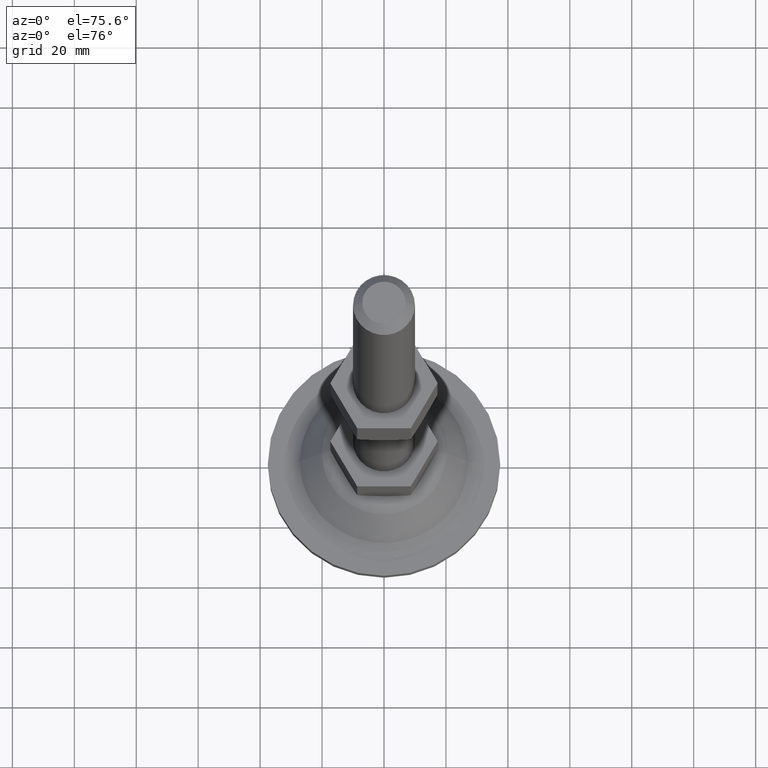
[diagram: clean part render]
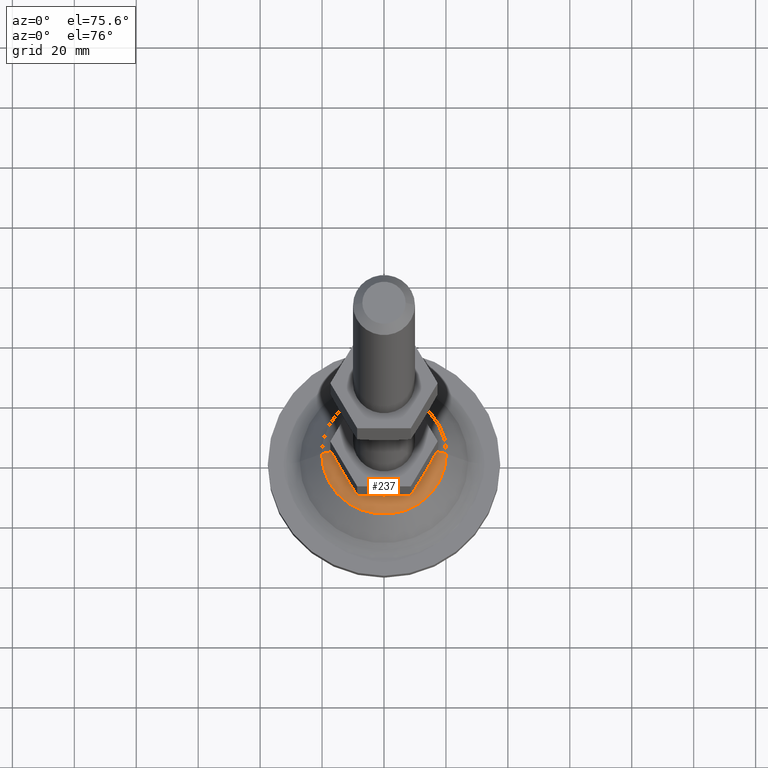
[diagram: same view with one face highlighted and labeled with its STEP entity id]
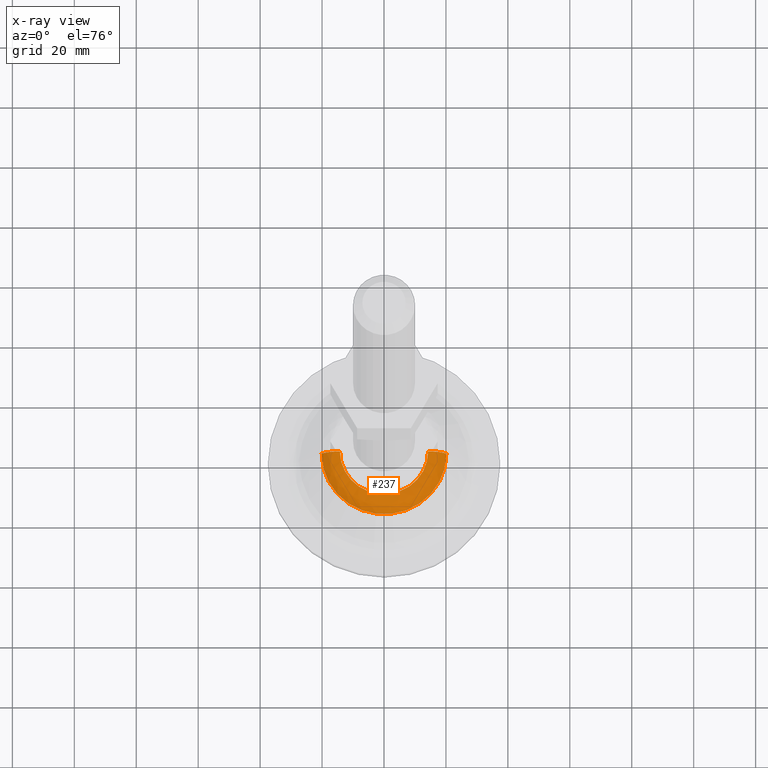
[diagram: x-ray of the same camera — body ghosted, the highlighted face saturated]
A machine part, auxiliary view. The second image highlights one B-rep face of the part: STEP entity #237.
The next image is the same camera in x-ray: the body ghosted, the highlighted face saturated — about 0% of this face is hidden behind the body in this view.
In plain terms, the highlighted face is a freeform B-spline surface patch.
Its self-contained STEP definition (entity closure, byte-faithful):
#237=ADVANCED_FACE('',(#1132),#1131,.T.);
#1131=( BOUNDED_SURFACE() B_SPLINE_SURFACE( 2,2,((#1795,#1796,#1797),(#1798,#1799,#1800),(#1801,#1802,#1803),(#1804,#1805,#1806),(#1807,#1808,#1809)), .UNSPECIFIED.,.F.,.F.,.F.) B_SPLINE_SURFACE_WITH_KNOTS((3,2,3),(3,3),(0.00000000000E+00,5.00000000000E-01,1.00000000000E+00),(0.00000000000E+00,1.00000000000E+00), .UNSPECIFIED. ) GEOMETRIC_REPRESENTATION_ITEM() RATIONAL_B_SPLINE_SURFACE(((1.00000000000E+00,5.73576436349E-01,1.00000000000E+00),(7.07106781187E-01,4.05579787671E-01,7.07106781187E-01),(1.00000000000E+00,5.73576436349E-01,1.00000000000E+00),(7.07106781187E-01,4.05579787671E-01,7.07106781187E-01),(1.00000000000E+00,5.73576436349E-01,1.00000000000E+00))) REPRESENTATION_ITEM('') SURFACE() );
#1132=FACE_OUTER_BOUND('',#1810,.T.);
#1795=CARTESIAN_POINT('',(8.35210528111E+00,-1.02280411951E-15,-1.61119920888E+01));
#1796=CARTESIAN_POINT('',(1.42500000000E+01,-1.74506405420E-15,-7.68892550201E+00));
#1797=CARTESIAN_POINT('',(2.01478947189E+01,-2.46732398889E-15,-1.61119920888E+01));
#1798=CARTESIAN_POINT('',(8.35210528111E+00,-8.35210528115E+00,-1.61119920888E+01));
#1799=CARTESIAN_POINT('',(1.42500000000E+01,-1.42500000000E+01,-7.68892550201E+00));
#1800=CARTESIAN_POINT('',(2.01478947189E+01,-2.01478947189E+01,-1.61119920888E+01));
#1801=CARTESIAN_POINT('',(-3.52153979475E-11,-8.35210528115E+00,-1.61119920888E+01));
#1802=CARTESIAN_POINT('',(-3.52157590655E-11,-1.42500000000E+01,-7.68892550201E+00));
#1803=CARTESIAN_POINT('',(-3.52161201836E-11,-2.01478947189E+01,-1.61119920888E+01));
#1804=CARTESIAN_POINT('',(-8.35210528118E+00,-8.35210528115E+00,-1.61119920888E+01));
#1805=CARTESIAN_POINT('',(-1.42500000001E+01,-1.42500000000E+01,-7.68892550201E+00));
#1806=CARTESIAN_POINT('',(-2.01478947190E+01,-2.01478947189E+01,-1.61119920888E+01));
#1807=CARTESIAN_POINT('',(-8.35210528118E+00,-3.37803612330E-20,-1.61119920888E+01));
#1808=CARTESIAN_POINT('',(-1.42500000001E+01,-5.76345880915E-20,-7.68892550201E+00));
#1809=CARTESIAN_POINT('',(-2.01478947190E+01,-8.14888149490E-20,-1.61119920888E+01));
#1810=EDGE_LOOP('',(#2235,#2236,#2237,#2238));
#2235=ORIENTED_EDGE('',*,*,#2446,.F.);
#2236=ORIENTED_EDGE('',*,*,#2449,.F.);
#2237=ORIENTED_EDGE('',*,*,#2423,.T.);
#2238=ORIENTED_EDGE('',*,*,#2450,.T.);
#2423=EDGE_CURVE('',#3651,#3652,#3653,.T.);
#2446=EDGE_CURVE('',#3793,#3800,#3801,.T.);
#2449=EDGE_CURVE('',#3651,#3793,#3819,.T.);
#2450=EDGE_CURVE('',#3652,#3800,#3825,.T.);
#3651=VERTEX_POINT('',#4693);
#3652=VERTEX_POINT('',#4694);
#3653=CIRCLE('',#4698,1.42500000001E+01);
#3793=VERTEX_POINT('',#4773);
#3800=VERTEX_POINT('',#4776);
#3801=CIRCLE('',#4780,2.01478947189E+01);
#3819=(BOUNDED_CURVE() B_SPLINE_CURVE(2,(#4787,#4788,#4789),.UNSPECIFIED.,.F.,.F.) B_SPLINE_CURVE_WITH_KNOTS((3,3),(5.00000000000E-01,1.00000000000E+00),.UNSPECIFIED.) CURVE() GEOMETRIC_REPRESENTATION_ITEM() RATIONAL_B_SPLINE_CURVE((7.86788218174E-01,7.86788218174E-01,1.00000000000E+00)) REPRESENTATION_ITEM('') );
#3825=(BOUNDED_CURVE() B_SPLINE_CURVE(2,(#4790,#4791,#4792),.UNSPECIFIED.,.F.,.F.) B_SPLINE_CURVE_WITH_KNOTS((3,3),(4.99999953827E-01,1.00000000000E+00),.UNSPECIFIED.) CURVE() GEOMETRIC_REPRESENTATION_ITEM() RATIONAL_B_SPLINE_CURVE((5.90091163631E-01,5.90091148864E-01,7.50000000000E-01)) REPRESENTATION_ITEM('') );
#4693=CARTESIAN_POINT('',(1.42500000000E+01,5.92118946467E-16,-1.30417424305E+01));
#4694=CARTESIAN_POINT('',(-1.42500000001E+01,0.00000000000E+00,-1.30417424305E+01));
#4695=CARTESIAN_POINT('',(-3.52144979843E-11,0.00000000000E+00,-1.30417424305E+01));
#4696=DIRECTION('',(-0.00000000000E+00,0.00000000000E+00,-1.00000000000E+00));
#4697=DIRECTION('',(-1.00000000000E+00,-1.22460635382E-16,0.00000000000E+00));
#4698=AXIS2_PLACEMENT_3D('',#4695,#4696,#4697);
#4773=CARTESIAN_POINT('',(2.01478947189E+01,1.18423789293E-15,-1.61119920888E+01));
#4776=CARTESIAN_POINT('',(-2.01478947190E+01,0.00000000000E+00,-1.61119920888E+01));
#4777=CARTESIAN_POINT('',(-3.52144979843E-11,0.00000000000E+00,-1.61119920888E+01));
#4778=DIRECTION('',(-0.00000000000E+00,0.00000000000E+00,-1.00000000000E+00));
#4779=DIRECTION('',(-1.00000000000E+00,-1.22460635382E-16,0.00000000000E+00));
#4780=AXIS2_PLACEMENT_3D('',#4777,#4778,#4779);
#4787=CARTESIAN_POINT('',(1.42500000000E+01,-1.74506405420E-15,-1.30417424305E+01));
#4788=CARTESIAN_POINT('',(1.79980827640E+01,-2.20405665094E-15,-1.30417424305E+01));
#4789=CARTESIAN_POINT('',(2.01478947189E+01,-2.46732398889E-15,-1.61119920888E+01));
#4790=CARTESIAN_POINT('',(-1.42499993078E+01,2.44587616365E-15,-1.30417424305E+01));
#4791=CARTESIAN_POINT('',(-1.79980825117E+01,2.63402055252E-15,-1.30417420702E+01));
#4792=CARTESIAN_POINT('',(-2.01478947190E+01,2.36847578587E-15,-1.61119920888E+01));